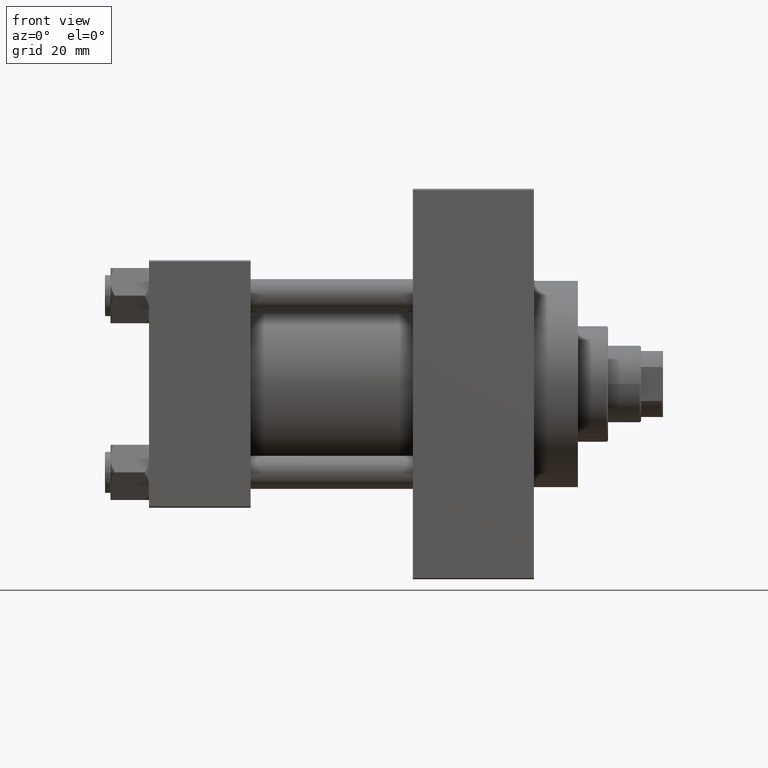
[diagram: clean part render]
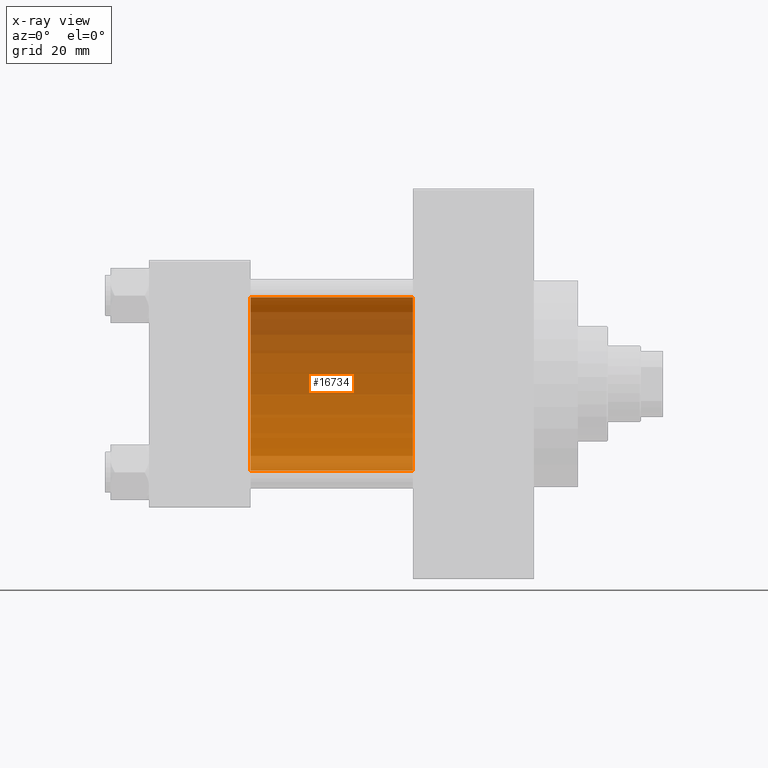
[diagram: x-ray — body ghosted, one internal face saturated and labeled with its STEP entity id]
A machine part, front view, then the same camera in x-ray: the body is ghosted and one INTERNAL B-rep face — a face not visible from any outside direction — is saturated and labeled: STEP entity #16734.
In plain terms, the highlighted cylindrical surface (partial cylindrical patch) has radius 31.5 mm, axis along (-1, -0, -0).
Its self-contained STEP definition (entity closure, byte-faithful):
#75 = CYLINDRICAL_SURFACE ( 'NONE', #13504, 31.50000000000000000 ) ;
#627 = VERTEX_POINT ( 'NONE', #16967 ) ;
#1859 = CARTESIAN_POINT ( 'NONE',  ( 96.00000000000000000, -2.602085213965210642E-15, 31.50000000000000000 ) ) ;
#2114 = CARTESIAN_POINT ( 'NONE',  ( 37.00000000000000000, -2.602085213965210642E-15, 0.000000000000000000 ) ) ;
#4184 = VERTEX_POINT ( 'NONE', #47324 ) ;
#4210 = VECTOR ( 'NONE', #20656, 1000.000000000000000 ) ;
#5608 = DIRECTION ( 'NONE',  ( 1.000000000000000000, 0.000000000000000000, 0.000000000000000000 ) ) ;
#7813 = CIRCLE ( 'NONE', #10999, 31.50000000000000000 ) ;
#7985 = DIRECTION ( 'NONE',  ( 0.000000000000000000, 0.000000000000000000, 1.000000000000000000 ) ) ;
#10033 = DIRECTION ( 'NONE',  ( 1.000000000000000000, 0.000000000000000000, 0.000000000000000000 ) ) ;
#10573 = CARTESIAN_POINT ( 'NONE',  ( 96.00000000000000000, 1.255552203348951850E-15, -31.50000000000000000 ) ) ;
#10769 = DIRECTION ( 'NONE',  ( 0.000000000000000000, 0.000000000000000000, -1.000000000000000000 ) ) ;
#10999 = AXIS2_PLACEMENT_3D ( 'NONE', #2114, #10033, #10769 ) ;
#11797 = CARTESIAN_POINT ( 'NONE',  ( 96.00000000000000000, -2.602085213965210642E-15, 31.50000000000000000 ) ) ;
#11945 = DIRECTION ( 'NONE',  ( -1.000000000000000000, -0.000000000000000000, -0.000000000000000000 ) ) ;
#13347 = EDGE_CURVE ( 'NONE', #4184, #627, #7813, .T. ) ;
#13504 = AXIS2_PLACEMENT_3D ( 'NONE', #37951, #11945, #7985 ) ;
#16277 = EDGE_CURVE ( 'NONE', #48363, #41798, #47443, .T. ) ;
#16734 = ADVANCED_FACE ( 'NONE', ( #25330 ), #75, .F. ) ;
#16967 = CARTESIAN_POINT ( 'NONE',  ( 37.00000000000000000, -2.602085213965210642E-15, 31.50000000000000000 ) ) ;
#20656 = DIRECTION ( 'NONE',  ( -1.000000000000000000, -0.000000000000000000, -0.000000000000000000 ) ) ;
#22957 = ORIENTED_EDGE ( 'NONE', *, *, #13347, .F. ) ;
#24907 = CARTESIAN_POINT ( 'NONE',  ( 96.00000000000000000, -2.602085213965210642E-15, 0.000000000000000000 ) ) ;
#25330 = FACE_OUTER_BOUND ( 'NONE', #31328, .T. ) ;
#25412 = LINE ( 'NONE', #10573, #25694 ) ;
#25694 = VECTOR ( 'NONE', #32853, 1000.000000000000000 ) ;
#25857 = CARTESIAN_POINT ( 'NONE',  ( 96.00000000000000000, 1.255552203348951850E-15, -31.50000000000000000 ) ) ;
#28521 = ORIENTED_EDGE ( 'NONE', *, *, #30753, .F. ) ;
#28638 = DIRECTION ( 'NONE',  ( 0.000000000000000000, 0.000000000000000000, -1.000000000000000000 ) ) ;
#30753 = EDGE_CURVE ( 'NONE', #48363, #4184, #25412, .T. ) ;
#31328 = EDGE_LOOP ( 'NONE', ( #28521, #36638, #36250, #22957 ) ) ;
#32853 = DIRECTION ( 'NONE',  ( -1.000000000000000000, -0.000000000000000000, -0.000000000000000000 ) ) ;
#36250 = ORIENTED_EDGE ( 'NONE', *, *, #46780, .T. ) ;
#36638 = ORIENTED_EDGE ( 'NONE', *, *, #16277, .T. ) ;
#37951 = CARTESIAN_POINT ( 'NONE',  ( 96.00000000000000000, -2.602085213965210642E-15, 0.000000000000000000 ) ) ;
#41133 = AXIS2_PLACEMENT_3D ( 'NONE', #24907, #5608, #28638 ) ;
#41798 = VERTEX_POINT ( 'NONE', #11797 ) ;
#46181 = LINE ( 'NONE', #1859, #4210 ) ;
#46780 = EDGE_CURVE ( 'NONE', #41798, #627, #46181, .T. ) ;
#47324 = CARTESIAN_POINT ( 'NONE',  ( 37.00000000000000000, 1.255552203348951850E-15, -31.50000000000000000 ) ) ;
#47443 = CIRCLE ( 'NONE', #41133, 31.50000000000000000 ) ;
#48363 = VERTEX_POINT ( 'NONE', #25857 ) ;